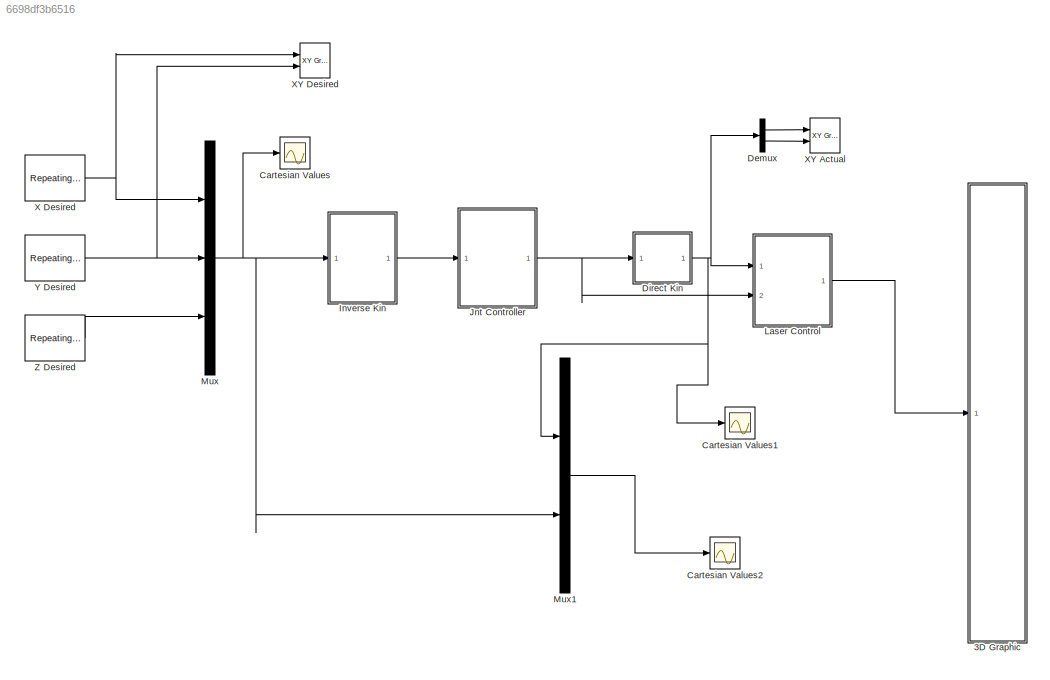
MODEL slx_6698df3b6516
KIND model
CONFIG AbsTol = auto
CONFIG EnableMultiTasking = off
CONFIG FixedStep = auto
CONFIG MaxStep = auto
CONFIG MinStep = auto
CONFIG RelTol = 1e-3
CONFIG SampleTimeConstraint = Unconstrained
CONFIG Solver = VariableStepAuto
CONFIG SolverName = VariableStepAuto
CONFIG StartTime = 0.0
CONFIG StopTime = 10.0
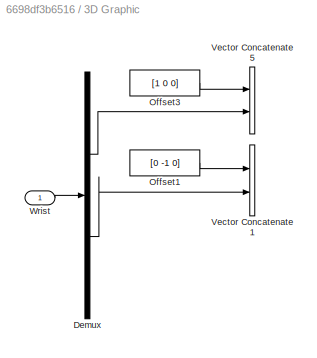
BLOCK [SubSystem] 3D Graphic
  Ports = [1]
  RequestExecContextInheritance = off
  Variant = off
BLOCK [Demux] 3D Graphic/Demux
  DisplayOption = bar
  Outputs = 2
  Ports = [1, 2]
BLOCK [Constant] 3D Graphic/Offset1
  Value = [0 -1 0]
BLOCK [Constant] 3D Graphic/Offset3
  Value = [1 0 0]
BLOCK [Concatenate] 3D Graphic/Vector Concatenate1
  Ports = [2, 1]
BLOCK [Concatenate] 3D Graphic/Vector Concatenate5
  Ports = [2, 1]
BLOCK [Inport] 3D Graphic/Wrist
  IconDisplay = Port number
BLOCK [Scope] Cartesian Values
  NumInputPorts = 1
  Ports = [1]
  ScopeSpecificationString = Simulink.scopes.TimeScopeBlockCfg('CurrentConfiguration', extmgr.ConfigurationSet(extmgr.Configuration('Core','General UI',true),extmgr.Configuration('Core','Source UI',true),extmgr.Configuration('Sources','WiredSimulink',true,'DataLoggingLimitDataPoints',true,'DataLoggingSaveFormat','Array','DataLoggingDecimation','1','DataLoggingDecimateData',true),extmgr.Configuration('Visuals','Time Domain',tr...<+1758ch>
BLOCK [Scope] Cartesian Values1
  NumInputPorts = 1
  Ports = [1]
  ScopeSpecificationString = Simulink.scopes.TimeScopeBlockCfg('CurrentConfiguration', extmgr.ConfigurationSet(extmgr.Configuration('Core','General UI',true),extmgr.Configuration('Core','Source UI',true),extmgr.Configuration('Sources','WiredSimulink',true,'DataLoggingVariableName','ScopeData1','DataLoggingLimitDataPoints',true,'DataLoggingSaveFormat','Array','DataLoggingDecimation','1','DataLoggingDecimateData',true),extmgr.C...<+1772ch>
BLOCK [Scope] Cartesian Values2
  NumInputPorts = 1
  Ports = [1]
  ScopeSpecificationString = Simulink.scopes.TimeScopeBlockCfg('CurrentConfiguration', extmgr.ConfigurationSet(extmgr.Configuration('Core','General UI',true),extmgr.Configuration('Core','Source UI',true),extmgr.Configuration('Sources','WiredSimulink',true,'DataLoggingVariableName','ScopeData1','DataLoggingLimitDataPoints',true,'DataLoggingSaveFormat','Array','DataLoggingDecimation','1','DataLoggingDecimateData',true),extmgr.C...<+1808ch>
BLOCK [Demux] Demux
  DisplayOption = bar
  Outputs = 2
  Ports = [1, 2]
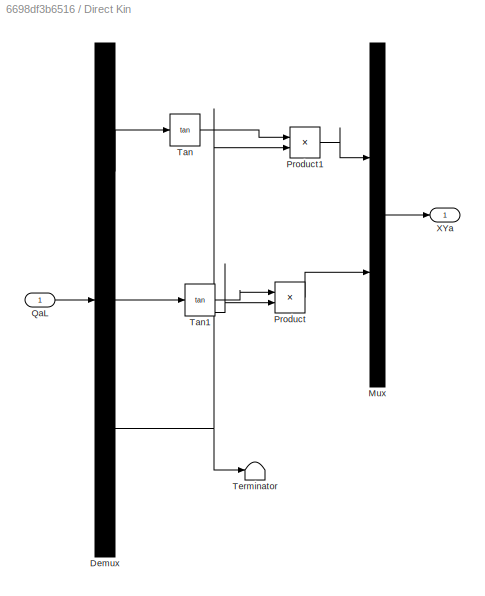
BLOCK [SubSystem] Direct Kin
  Ports = [1, 1]
  RequestExecContextInheritance = off
  Variant = off
BLOCK [Demux] Direct Kin/Demux
  DisplayOption = bar
  Outputs = 3
  Ports = [1, 3]
BLOCK [Mux] Direct Kin/Mux
  DisplayOption = bar
  Inputs = 2
  Ports = [2, 1]
BLOCK [Product] Direct Kin/Product
  InputSameDT = off
  OutDataTypeStr = Inherit: Inherit via internal rule
  Ports = [2, 1]
  RndMeth = Floor
  SaturateOnIntegerOverflow = off
BLOCK [Product] Direct Kin/Product1
  InputSameDT = off
  OutDataTypeStr = Inherit: Inherit via internal rule
  Ports = [2, 1]
  RndMeth = Floor
  SaturateOnIntegerOverflow = off
BLOCK [Inport] Direct Kin/QaL
  IconDisplay = Port number
BLOCK [Trigonometry] Direct Kin/Tan
  Operator = tan
  Ports = [1, 1]
BLOCK [Trigonometry] Direct Kin/Tan1
  Operator = tan
  Ports = [1, 1]
BLOCK [Terminator] Direct Kin/Terminator
BLOCK [Outport] Direct Kin/XYa
  IconDisplay = Port number
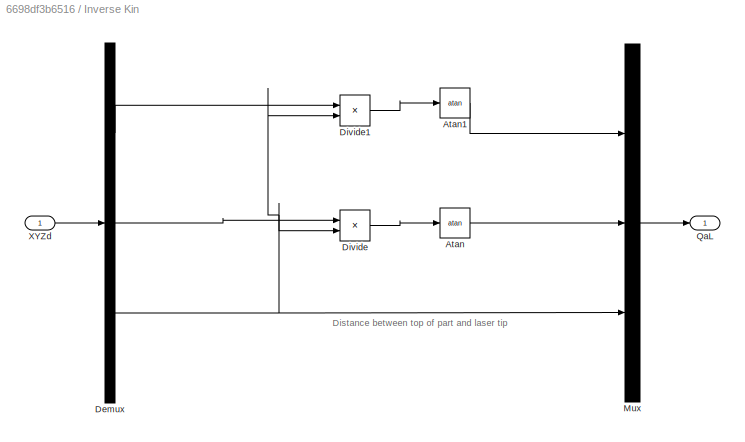
BLOCK [SubSystem] Inverse Kin
  Ports = [1, 1]
  RequestExecContextInheritance = off
  Variant = off
BLOCK [Trigonometry] Inverse Kin/Atan
  Operator = atan
  Ports = [1, 1]
BLOCK [Trigonometry] Inverse Kin/Atan1
  Operator = atan
  Ports = [1, 1]
BLOCK [Demux] Inverse Kin/Demux
  DisplayOption = bar
  Outputs = 3
  Ports = [1, 3]
BLOCK [Product] Inverse Kin/Divide
  InputSameDT = off
  Inputs = */
  OutDataTypeStr = Inherit: Inherit via internal rule
  Ports = [2, 1]
  RndMeth = Floor
  SaturateOnIntegerOverflow = off
BLOCK [Product] Inverse Kin/Divide1
  InputSameDT = off
  Inputs = */
  OutDataTypeStr = Inherit: Inherit via internal rule
  Ports = [2, 1]
  RndMeth = Floor
  SaturateOnIntegerOverflow = off
BLOCK [Mux] Inverse Kin/Mux
  DisplayOption = bar
  Inputs = 3
  Ports = [3, 1]
BLOCK [Outport] Inverse Kin/QaL
  IconDisplay = Port number
BLOCK [Inport] Inverse Kin/XYZd
  IconDisplay = Port number
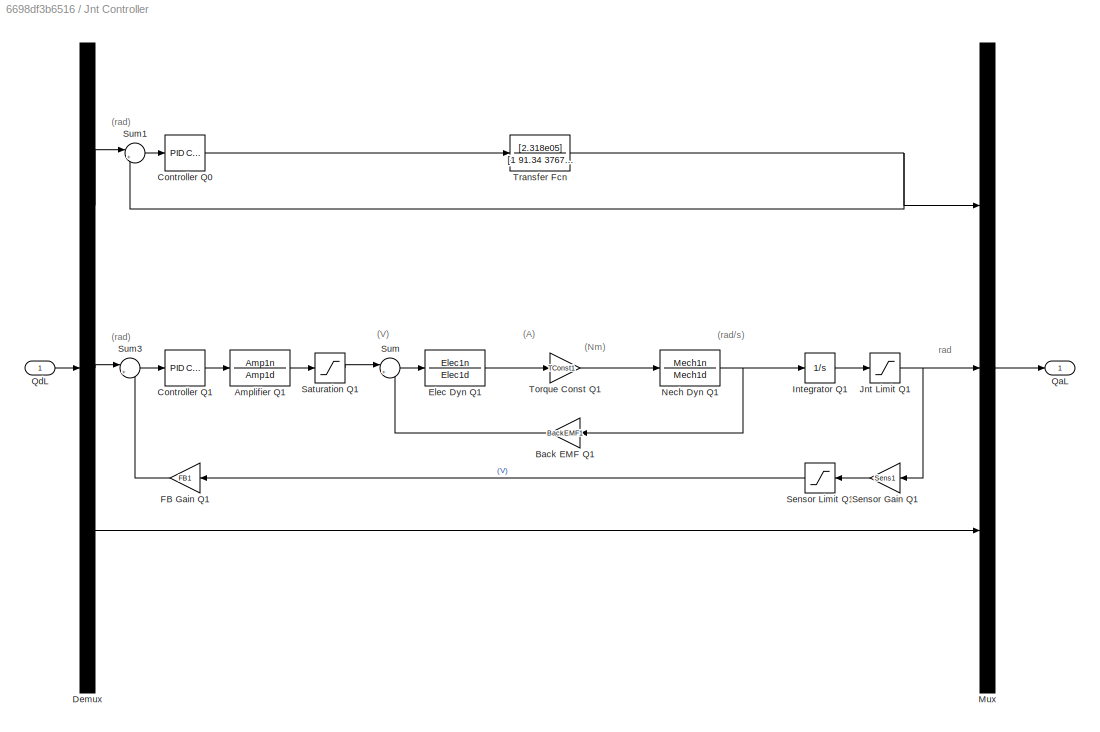
BLOCK [SubSystem] Jnt Controller
  Ports = [1, 1]
  RequestExecContextInheritance = off
  Variant = off
BLOCK [TransferFcn] Jnt Controller/Amplifier Q1
  Commented = through
  Denominator = Amp1d
  Numerator = Amp1n
BLOCK [Gain] Jnt Controller/Back EMF Q1
  Commented = through
  Gain = BackEMF1
  OutDataTypeStr = Inherit: Inherit via internal rule
  ParamDataTypeStr = Inherit: Inherit via internal rule
  SaturateOnIntegerOverflow = off
BLOCK [Reference] Jnt Controller/Controller Q0  REF=simulink/Continuous/PID Controller
  Ports = [1, 1]
  SourceBlock = simulink/Continuous/PID Controller
  SourceProductBaseCode = SL
  SourceProductName = Simulink
  SourceType = PID 1dof
BLOCK [Reference] Jnt Controller/Controller Q1  REF=simulink/Continuous/PID Controller
  Commented = through
  Ports = [1, 1]
  SourceBlock = simulink/Continuous/PID Controller
  SourceProductBaseCode = SL
  SourceProductName = Simulink
  SourceType = PID 1dof
BLOCK [Demux] Jnt Controller/Demux
  DisplayOption = bar
  Outputs = 3
  Ports = [1, 3]
BLOCK [TransferFcn] Jnt Controller/Elec Dyn Q1
  Commented = through
  Denominator = Elec1d
  Numerator = Elec1n
BLOCK [Gain] Jnt Controller/FB Gain Q1
  Commented = through
  Gain = FB1
  OutDataTypeStr = Inherit: Inherit via internal rule
  ParamDataTypeStr = Inherit: Inherit via internal rule
  SaturateOnIntegerOverflow = off
BLOCK [Integrator] Jnt Controller/Integrator Q1
  Commented = through
  Ports = [1, 1]
BLOCK [Saturate] Jnt Controller/Jnt Limit Q1
  Commented = through
  InputPortMap = u0
  LowerLimit = -JntSat1
  Ports = [1, 1]
  UpperLimit = JntSat1
BLOCK [Mux] Jnt Controller/Mux
  DisplayOption = bar
  Inputs = 3
  Ports = [3, 1]
BLOCK [TransferFcn] Jnt Controller/Nech Dyn Q1
  Commented = through
  Denominator = Mech1d
  Numerator = Mech1n
BLOCK [Outport] Jnt Controller/QaL
  IconDisplay = Port number
BLOCK [Inport] Jnt Controller/QdL
  IconDisplay = Port number
BLOCK [Saturate] Jnt Controller/Saturation Q1
  Commented = through
  InputPortMap = u0
  LowerLimit = -AmpSat1
  Ports = [1, 1]
  UpperLimit = AmpSat1
BLOCK [Gain] Jnt Controller/Sensor Gain Q1
  Commented = through
  Gain = Sens1
  OutDataTypeStr = Inherit: Inherit via internal rule
  ParamDataTypeStr = Inherit: Inherit via internal rule
  SaturateOnIntegerOverflow = off
BLOCK [Saturate] Jnt Controller/Sensor Limit Q1
  Commented = through
  InputPortMap = u0
  LowerLimit = -SensSat1
  Ports = [1, 1]
  UpperLimit = SensSat1
BLOCK [Sum] Jnt Controller/Sum
  IconShape = round
  InputSameDT = off
  Inputs = |+-
  OutDataTypeStr = Inherit: Inherit via internal rule
  Ports = [2, 1]
  SaturateOnIntegerOverflow = off
BLOCK [Sum] Jnt Controller/Sum1
  IconShape = round
  InputSameDT = off
  Inputs = |+-
  OutDataTypeStr = Inherit: Inherit via internal rule
  Ports = [2, 1]
  SaturateOnIntegerOverflow = off
BLOCK [Sum] Jnt Controller/Sum3
  IconShape = round
  InputSameDT = off
  Inputs = |+-
  OutDataTypeStr = Inherit: Inherit via internal rule
  Ports = [2, 1]
  SaturateOnIntegerOverflow = off
BLOCK [Gain] Jnt Controller/Torque Const Q1
  Commented = through
  Gain = TConst1
  OutDataTypeStr = Inherit: Inherit via internal rule
  ParamDataTypeStr = Inherit: Inherit via internal rule
  SaturateOnIntegerOverflow = off
BLOCK [TransferFcn] Jnt Controller/Transfer Fcn
  Denominator = [1 91.34 3767 0]
  Numerator = [2.318e05]
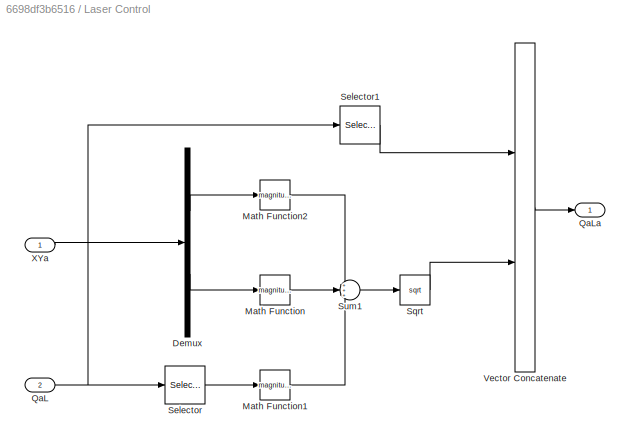
BLOCK [SubSystem] Laser Control
  Ports = [2, 1]
  RequestExecContextInheritance = off
  Variant = off
BLOCK [Demux] Laser Control/Demux
  DisplayOption = bar
  Outputs = 2
  Ports = [1, 2]
BLOCK [Math] Laser Control/Math Function
  Operator = magnitude^2
  Ports = [1, 1]
BLOCK [Math] Laser Control/Math Function1
  Operator = magnitude^2
  Ports = [1, 1]
BLOCK [Math] Laser Control/Math Function2
  Operator = magnitude^2
  Ports = [1, 1]
BLOCK [Inport] Laser Control/QaL
  IconDisplay = Port number
  Port = 2
BLOCK [Outport] Laser Control/QaLa
  IconDisplay = Port number
BLOCK [Selector] Laser Control/Selector
  IndexOptions = Index vector (dialog)
  Indices = 3
  InputPortWidth = 3
  OutputSizes = 1
  Ports = [1, 1]
BLOCK [Selector] Laser Control/Selector1
  IndexOptions = Index vector (dialog)
  Indices = [1 2]
  InputPortWidth = 3
  OutputSizes = 1
  Ports = [1, 1]
BLOCK [Sqrt] Laser Control/Sqrt
BLOCK [Sum] Laser Control/Sum1
  IconShape = round
  InputSameDT = off
  Inputs = +++
  OutDataTypeStr = Inherit: Inherit via internal rule
  Ports = [3, 1]
  SaturateOnIntegerOverflow = off
BLOCK [Concatenate] Laser Control/Vector Concatenate
  Ports = [2, 1]
BLOCK [Inport] Laser Control/XYa
  IconDisplay = Port number
BLOCK [Mux] Mux
  DisplayOption = bar
  Inputs = 3
  Ports = [3, 1]
BLOCK [Mux] Mux1
  DisplayOption = bar
  Inputs = 2
  Ports = [2, 1]
BLOCK [Reference] X Desired  REF=simulink/Sources/Repeating
Sequence
Interpolated
  Ports = [0, 1]
  SourceBlock = simulink/Sources/Repeating\nSequence\nInterpolated
  SourceProductBaseCode = SL
  SourceProductName = Simulink
  SourceType = Repeating Sequence Interpolated
BLOCK [Reference] XY Actual  REF=simulink/Sinks/XY Graph
  Ports = [2]
  SourceBlock = simulink/Sinks/XY Graph
  SourceProductBaseCode = SL
  SourceProductName = Simulink
  SourceType = XY scope.
BLOCK [Reference] XY Desired  REF=simulink/Sinks/XY Graph
  Ports = [2]
  SourceBlock = simulink/Sinks/XY Graph
  SourceProductBaseCode = SL
  SourceProductName = Simulink
  SourceType = XY scope.
BLOCK [Reference] Y Desired  REF=simulink/Sources/Repeating
Sequence
Interpolated
  Ports = [0, 1]
  SourceBlock = simulink/Sources/Repeating\nSequence\nInterpolated
  SourceProductBaseCode = SL
  SourceProductName = Simulink
  SourceType = Repeating Sequence Interpolated
BLOCK [Reference] Z Desired  REF=simulink/Sources/Repeating
Sequence
Interpolated
  Ports = [0, 1]
  SourceBlock = simulink/Sources/Repeating\nSequence\nInterpolated
  SourceProductBaseCode = SL
  SourceProductName = Simulink
  SourceType = Repeating Sequence Interpolated
ANNOTATION Inverse Kin: Distance between top of part and laser tip
ANNOTATION Jnt Controller: (A)
ANNOTATION Jnt Controller: (Nm)
ANNOTATION Jnt Controller: (V)
ANNOTATION Jnt Controller: (rad)
ANNOTATION Jnt Controller: (rad/s)
ANNOTATION Jnt Controller: rad
LINE 3D Graphic/Demux:1 -> 3D Graphic/Vector Concatenate5:2
LINE 3D Graphic/Demux:2 -> 3D Graphic/Vector Concatenate1:2
LINE 3D Graphic/Offset1:1 -> 3D Graphic/Vector Concatenate1:1
LINE 3D Graphic/Offset3:1 -> 3D Graphic/Vector Concatenate5:1
LINE 3D Graphic/Wrist:1 -> 3D Graphic/Demux:1
LINE Demux:1 -> XY Actual:1
LINE Demux:2 -> XY Actual:2
LINE Direct Kin/Demux:1 -> Direct Kin/Tan:1
LINE Direct Kin/Demux:2 -> Direct Kin/Tan1:1
NET Direct Kin/Demux:3 -> Direct Kin/Product1:2, Direct Kin/Product:2, Direct Kin/Terminator:1
LINE Direct Kin/Mux:1 -> Direct Kin/XYa:1
LINE Direct Kin/Product1:1 -> Direct Kin/Mux:1
LINE Direct Kin/Product:1 -> Direct Kin/Mux:2
LINE Direct Kin/QaL:1 -> Direct Kin/Demux:1
LINE Direct Kin/Tan1:1 -> Direct Kin/Product:1
LINE Direct Kin/Tan:1 -> Direct Kin/Product1:1
NET Direct Kin:1 -> Cartesian Values1:1, Demux:1, Laser Control:1, Mux1:1
LINE Inverse Kin/Atan1:1 -> Inverse Kin/Mux:1
LINE Inverse Kin/Atan:1 -> Inverse Kin/Mux:2
LINE Inverse Kin/Demux:1 -> Inverse Kin/Divide1:1
LINE Inverse Kin/Demux:2 -> Inverse Kin/Divide:1
NET Inverse Kin/Demux:3 -> Inverse Kin/Divide1:2, Inverse Kin/Divide:2, Inverse Kin/Mux:3
LINE Inverse Kin/Divide1:1 -> Inverse Kin/Atan1:1
LINE Inverse Kin/Divide:1 -> Inverse Kin/Atan:1
LINE Inverse Kin/Mux:1 -> Inverse Kin/QaL:1
LINE Inverse Kin/XYZd:1 -> Inverse Kin/Demux:1
LINE Inverse Kin:1 -> Jnt Controller:1
LINE Jnt Controller/Amplifier Q1:1 -> Jnt Controller/Saturation Q1:1
LINE Jnt Controller/Back EMF Q1:1 -> Jnt Controller/Sum:2
LINE Jnt Controller/Controller Q0:1 -> Jnt Controller/Transfer Fcn:1
LINE Jnt Controller/Controller Q1:1 -> Jnt Controller/Amplifier Q1:1
LINE Jnt Controller/Demux:1 -> Jnt Controller/Sum1:1
LINE Jnt Controller/Demux:2 -> Jnt Controller/Sum3:1
LINE Jnt Controller/Demux:3 -> Jnt Controller/Mux:3
LINE Jnt Controller/Elec Dyn Q1:1 -> Jnt Controller/Torque Const Q1:1
LINE Jnt Controller/FB Gain Q1:1 -> Jnt Controller/Sum3:2
LINE Jnt Controller/Integrator Q1:1 -> Jnt Controller/Jnt Limit Q1:1
NET Jnt Controller/Jnt Limit Q1:1 -> Jnt Controller/Mux:2, Jnt Controller/Sensor Gain Q1:1
LINE Jnt Controller/Mux:1 -> Jnt Controller/QaL:1
NET Jnt Controller/Nech Dyn Q1:1 -> Jnt Controller/Back EMF Q1:1, Jnt Controller/Integrator Q1:1
LINE Jnt Controller/QdL:1 -> Jnt Controller/Demux:1
LINE Jnt Controller/Saturation Q1:1 -> Jnt Controller/Sum:1
LINE Jnt Controller/Sensor Gain Q1:1 -> Jnt Controller/Sensor Limit Q1:1
LINE Jnt Controller/Sensor Limit Q1:1 -> Jnt Controller/FB Gain Q1:1
LINE Jnt Controller/Sum1:1 -> Jnt Controller/Controller Q0:1
LINE Jnt Controller/Sum3:1 -> Jnt Controller/Controller Q1:1
LINE Jnt Controller/Sum:1 -> Jnt Controller/Elec Dyn Q1:1
LINE Jnt Controller/Torque Const Q1:1 -> Jnt Controller/Nech Dyn Q1:1
NET Jnt Controller/Transfer Fcn:1 -> Jnt Controller/Mux:1, Jnt Controller/Sum1:2
NET Jnt Controller:1 -> Direct Kin:1, Laser Control:2
LINE Laser Control/Demux:1 -> Laser Control/Math Function2:1
LINE Laser Control/Demux:2 -> Laser Control/Math Function:1
LINE Laser Control/Math Function1:1 -> Laser Control/Sum1:3
LINE Laser Control/Math Function2:1 -> Laser Control/Sum1:1
LINE Laser Control/Math Function:1 -> Laser Control/Sum1:2
NET Laser Control/QaL:1 -> Laser Control/Selector1:1, Laser Control/Selector:1
LINE Laser Control/Selector1:1 -> Laser Control/Vector Concatenate:1
LINE Laser Control/Selector:1 -> Laser Control/Math Function1:1
LINE Laser Control/Sqrt:1 -> Laser Control/Vector Concatenate:2
LINE Laser Control/Sum1:1 -> Laser Control/Sqrt:1
LINE Laser Control/Vector Concatenate:1 -> Laser Control/QaLa:1
LINE Laser Control/XYa:1 -> Laser Control/Demux:1
LINE Laser Control:1 -> 3D Graphic:1
LINE Mux1:1 -> Cartesian Values2:1
NET Mux:1 -> Cartesian Values:1, Inverse Kin:1, Mux1:2
NET X Desired:1 -> Mux:1, XY Desired:1
NET Y Desired:1 -> Mux:2, XY Desired:2
LINE Z Desired:1 -> Mux:3
note: NET lines group one-source signal fan-out (src -> all destinations, sorted); 1:1 wires keep LINE
